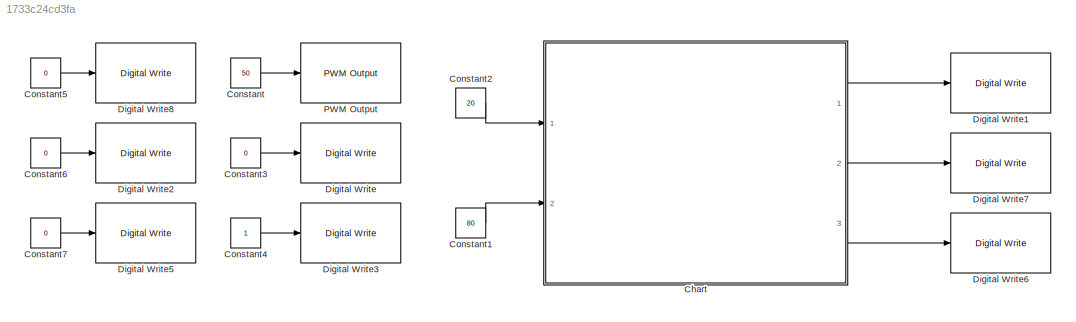
MODEL slx_1733c24cd3fa
KIND model
CONFIG AbsTol = auto
CONFIG EnableMultiTasking = on
CONFIG FixedStep = 1e-3
CONFIG MaxStep = auto
CONFIG MinStep = auto
CONFIG RelTol = 1e-3
CONFIG SampleTimeConstraint = Unconstrained
CONFIG SolverName = FixedStepAuto
CONFIG StartTime = 0.0
CONFIG StopTime = inf
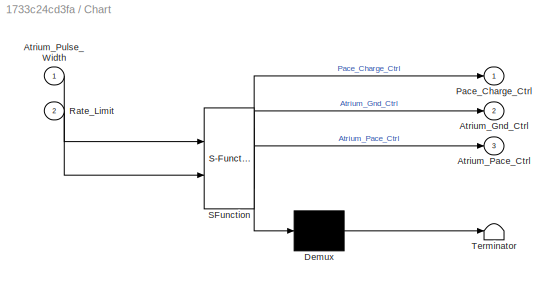
BLOCK [SubSystem] Chart
  ErrorFcn = Stateflow.Translate.translate
  PermitHierarchicalResolution = ExplicitOnly
  Ports = [2, 3]
  RequestExecContextInheritance = off
  SFBlockType = Chart
  TreatAsAtomicUnit = on
BLOCK [Demux] Chart/ Demux 
  Outputs = 1
  Ports = [1, 1]
BLOCK [S-Function] Chart/ SFunction 
  EnableBusSupport = on
  FunctionName = sf_sfun
  PortCounts = [2 4]
  Ports = [2, 4]
  SFcnIsStateOwnerBlock = off
  SFunctionDeploymentMode = off
  Tag = Stateflow S-Function 3
BLOCK [Terminator] Chart/ Terminator 
BLOCK [Outport] Chart/Atrium_Gnd_Ctrl
  Port = 2
BLOCK [Outport] Chart/Atrium_Pace_Ctrl
  Port = 3
BLOCK [Inport] Chart/Atrium_Pulse_Width
BLOCK [Outport] Chart/Pace_Charge_Ctrl
BLOCK [Inport] Chart/Rate_Limit
  Port = 2
BLOCK [Constant] Constant
  OutDataTypeStr = int8
  Value = 50
BLOCK [Constant] Constant1
  OutDataTypeStr = double
  Value = 80
BLOCK [Constant] Constant2
  Value = 20
BLOCK [Constant] Constant3
  OutDataTypeStr = int8
  Value = 0
BLOCK [Constant] Constant4
  OutDataTypeStr = int8
BLOCK [Constant] Constant5
  OutDataTypeStr = int8
  Value = 0
BLOCK [Constant] Constant6
  OutDataTypeStr = int8
  Value = 0
BLOCK [Constant] Constant7
  OutDataTypeStr = int8
  Value = 0
BLOCK [Reference] Digital Write  REF=frdmk64flib/Digital Write
  Ports = [1]
  SourceBlock = frdmk64flib/Digital Write
  SourceProductBaseCode = EC_FRDM_K64F
  SourceType = freedomk64f.DigitalWrite
BLOCK [Reference] Digital Write1  REF=frdmk64flib/Digital Write
  Ports = [1]
  SourceBlock = frdmk64flib/Digital Write
  SourceProductBaseCode = EC_FRDM_K64F
  SourceType = freedomk64f.DigitalWrite
BLOCK [Reference] Digital Write2  REF=frdmk64flib/Digital Write
  Ports = [1]
  SourceBlock = frdmk64flib/Digital Write
  SourceProductBaseCode = EC_FRDM_K64F
  SourceType = freedomk64f.DigitalWrite
BLOCK [Reference] Digital Write3  REF=frdmk64flib/Digital Write
  Ports = [1]
  SourceBlock = frdmk64flib/Digital Write
  SourceProductBaseCode = EC_FRDM_K64F
  SourceType = freedomk64f.DigitalWrite
BLOCK [Reference] Digital Write5  REF=frdmk64flib/Digital Write
  Ports = [1]
  SourceBlock = frdmk64flib/Digital Write
  SourceProductBaseCode = EC_FRDM_K64F
  SourceType = freedomk64f.DigitalWrite
BLOCK [Reference] Digital Write6  REF=frdmk64flib/Digital Write
  Ports = [1]
  SourceBlock = frdmk64flib/Digital Write
  SourceProductBaseCode = EC_FRDM_K64F
  SourceType = freedomk64f.DigitalWrite
BLOCK [Reference] Digital Write7  REF=frdmk64flib/Digital Write
  Ports = [1]
  SourceBlock = frdmk64flib/Digital Write
  SourceProductBaseCode = EC_FRDM_K64F
  SourceType = freedomk64f.DigitalWrite
BLOCK [Reference] Digital Write8  REF=frdmk64flib/Digital Write
  Ports = [1]
  SourceBlock = frdmk64flib/Digital Write
  SourceProductBaseCode = EC_FRDM_K64F
  SourceType = freedomk64f.DigitalWrite
BLOCK [Reference] PWM Output  REF=frdmk64flib/PWM Output
  Ports = [1]
  SourceBlock = frdmk64flib/PWM Output
  SourceProductBaseCode = EC_FRDM_K64F
  SourceType = freedomk64f.PWMOutput
LINE Chart:1 -> Digital Write1:1
LINE Chart:2 -> Digital Write7:1
LINE Chart:3 -> Digital Write6:1
LINE Constant1:1 -> Chart:2
LINE Constant2:1 -> Chart:1
LINE Constant3:1 -> Digital Write:1
LINE Constant4:1 -> Digital Write3:1
LINE Constant5:1 -> Digital Write8:1
LINE Constant6:1 -> Digital Write2:1
LINE Constant7:1 -> Digital Write5:1
LINE Constant:1 -> PWM Output:1
CHART Chart states=2 transitions=3
  STATE_LABEL 'Charge_C22\nentry:\nAtrium_Pace_Ctrl = false;\nAtrium_Gnd_Ctrl = true;\nPace_Charge_Ctrl = true;\n'
  STATE_LABEL 'Discharge_C22\nentry:\nPace_Charge_Ctrl = false;\nAtrium_Pace_Ctrl = true;\nAtrium_Gnd_Ctrl = false;\n'
CHART  states=0 transitions=0
